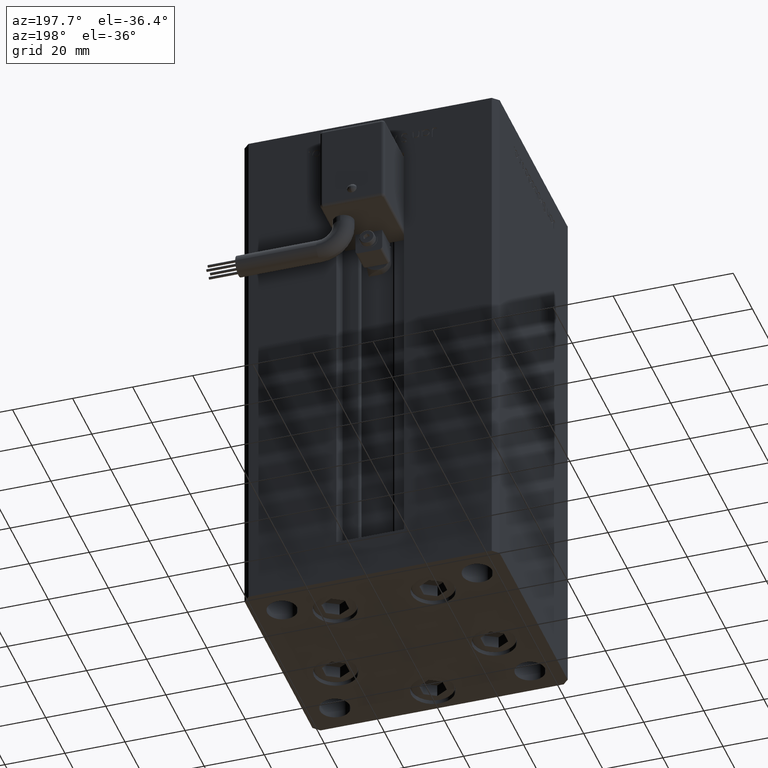
[diagram: clean part render]
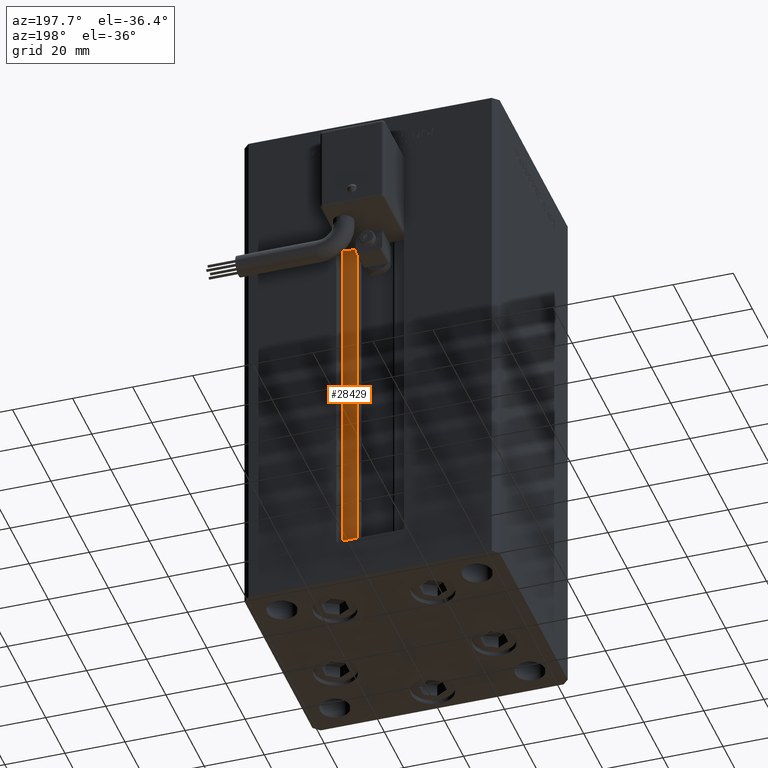
[diagram: same view with one face highlighted and labeled with its STEP entity id]
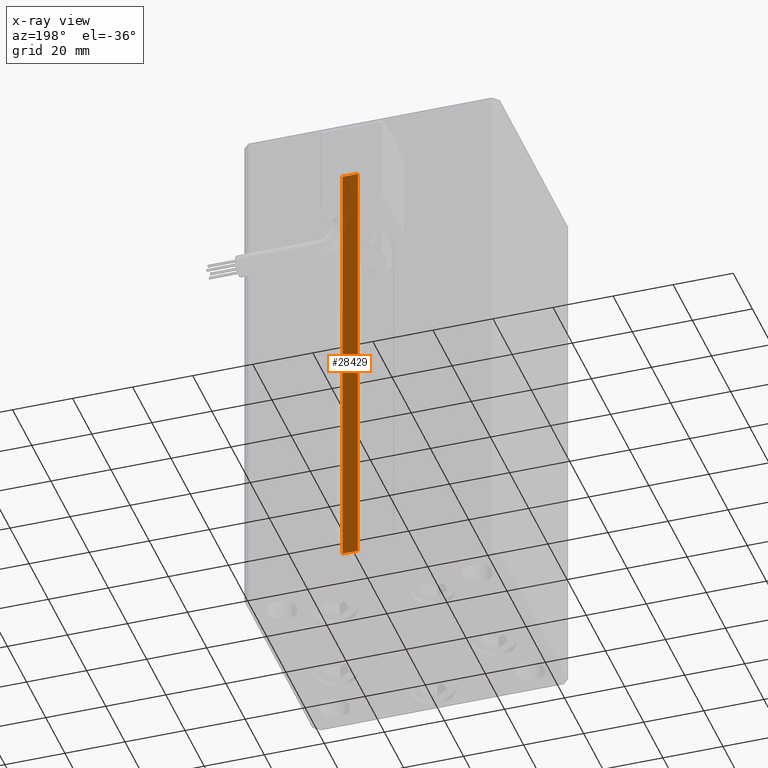
[diagram: x-ray of the same camera — body ghosted, the highlighted face saturated]
A machine part, auxiliary view. The second image highlights one B-rep face of the part: STEP entity #28429.
The next image is the same camera in x-ray: the body ghosted, the highlighted face saturated — about 12% of this face is hidden behind the body in this view.
In plain terms, the highlighted planar face has unit normal (0, -1, 0).
Its self-contained STEP definition (entity closure, byte-faithful):
#679 = LINE ( 'NONE', #13551, #49048 ) ;
#1957 = FACE_OUTER_BOUND ( 'NONE', #9249, .T. ) ;
#7412 = ORIENTED_EDGE ( 'NONE', *, *, #43502, .T. ) ;
#7609 = CARTESIAN_POINT ( 'NONE',  ( 6.183333333333999704, 30.99999999999999289, 0.000000000000000000 ) ) ;
#8880 = EDGE_CURVE ( 'NONE', #32523, #29229, #20336, .T. ) ;
#9249 = EDGE_LOOP ( 'NONE', ( #16741, #23942, #7412, #46197 ) ) ;
#11276 = VECTOR ( 'NONE', #27534, 1000.000000000000000 ) ;
#11360 = LINE ( 'NONE', #19996, #11276 ) ;
#13551 = CARTESIAN_POINT ( 'NONE',  ( 6.183333333333999704, 30.99999999999999289, 0.000000000000000000 ) ) ;
#13680 = DIRECTION ( 'NONE',  ( 1.000000000000000000, 0.000000000000000000, 0.000000000000000000 ) ) ;
#14003 = DIRECTION ( 'NONE',  ( 0.000000000000000000, -1.000000000000000000, 0.000000000000000000 ) ) ;
#15393 = EDGE_CURVE ( 'NONE', #29229, #52246, #11360, .T. ) ;
#16741 = ORIENTED_EDGE ( 'NONE', *, *, #8880, .F. ) ;
#17982 = DIRECTION ( 'NONE',  ( -0.000000000000000000, -0.000000000000000000, 1.000000000000000000 ) ) ;
#19529 = CARTESIAN_POINT ( 'NONE',  ( 6.183333333333999704, 30.99999999999999289, 0.000000000000000000 ) ) ;
#19996 = CARTESIAN_POINT ( 'NONE',  ( 0.000000000000000000, 30.99999999999999289, 148.5000000000000000 ) ) ;
#20336 = LINE ( 'NONE', #24799, #38655 ) ;
#22288 = VECTOR ( 'NONE', #13680, 1000.000000000000000 ) ;
#23942 = ORIENTED_EDGE ( 'NONE', *, *, #29510, .F. ) ;
#24799 = CARTESIAN_POINT ( 'NONE',  ( 11.25000000000000000, 30.99999999999999289, 0.000000000000000000 ) ) ;
#27534 = DIRECTION ( 'NONE',  ( -1.000000000000000000, 0.000000000000000000, 0.000000000000000000 ) ) ;
#28429 = ADVANCED_FACE ( 'NONE', ( #1957 ), #43840, .F. ) ;
#29229 = VERTEX_POINT ( 'NONE', #48570 ) ;
#29510 = EDGE_CURVE ( 'NONE', #49792, #32523, #30409, .T. ) ;
#30409 = LINE ( 'NONE', #39326, #22288 ) ;
#32523 = VERTEX_POINT ( 'NONE', #40244 ) ;
#36537 = DIRECTION ( 'NONE',  ( -0.000000000000000000, -0.000000000000000000, 1.000000000000000000 ) ) ;
#38655 = VECTOR ( 'NONE', #36537, 1000.000000000000000 ) ;
#39326 = CARTESIAN_POINT ( 'NONE',  ( 6.183333333333999704, 30.99999999999999289, 0.000000000000000000 ) ) ;
#40244 = CARTESIAN_POINT ( 'NONE',  ( 11.25000000000000000, 30.99999999999999289, 0.000000000000000000 ) ) ;
#43502 = EDGE_CURVE ( 'NONE', #49792, #52246, #679, .T. ) ;
#43840 = PLANE ( 'NONE',  #44541 ) ;
#44541 = AXIS2_PLACEMENT_3D ( 'NONE', #19529, #14003, #48017 ) ;
#44748 = CARTESIAN_POINT ( 'NONE',  ( 6.183333333333999704, 30.99999999999999289, 148.5000000000000000 ) ) ;
#46197 = ORIENTED_EDGE ( 'NONE', *, *, #15393, .F. ) ;
#48017 = DIRECTION ( 'NONE',  ( 0.000000000000000000, -0.000000000000000000, -1.000000000000000000 ) ) ;
#48570 = CARTESIAN_POINT ( 'NONE',  ( 11.25000000000000000, 30.99999999999999289, 148.5000000000000000 ) ) ;
#49048 = VECTOR ( 'NONE', #17982, 1000.000000000000000 ) ;
#49792 = VERTEX_POINT ( 'NONE', #7609 ) ;
#52246 = VERTEX_POINT ( 'NONE', #44748 ) ;